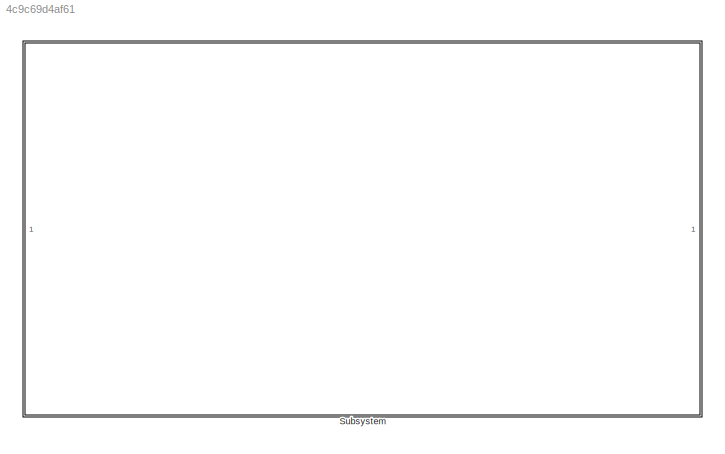
MODEL slx_4c9c69d4af61
KIND model
CONFIG AbsTol = auto
CONFIG EnableMultiTasking = off
CONFIG FixedStep = auto
CONFIG MaxStep = auto
CONFIG MinStep = auto
CONFIG RelTol = 1e-3
CONFIG SampleTimeConstraint = Unconstrained
CONFIG SolverName = VariableStepAuto
CONFIG StartTime = 0.0
CONFIG StopTime = 10.0
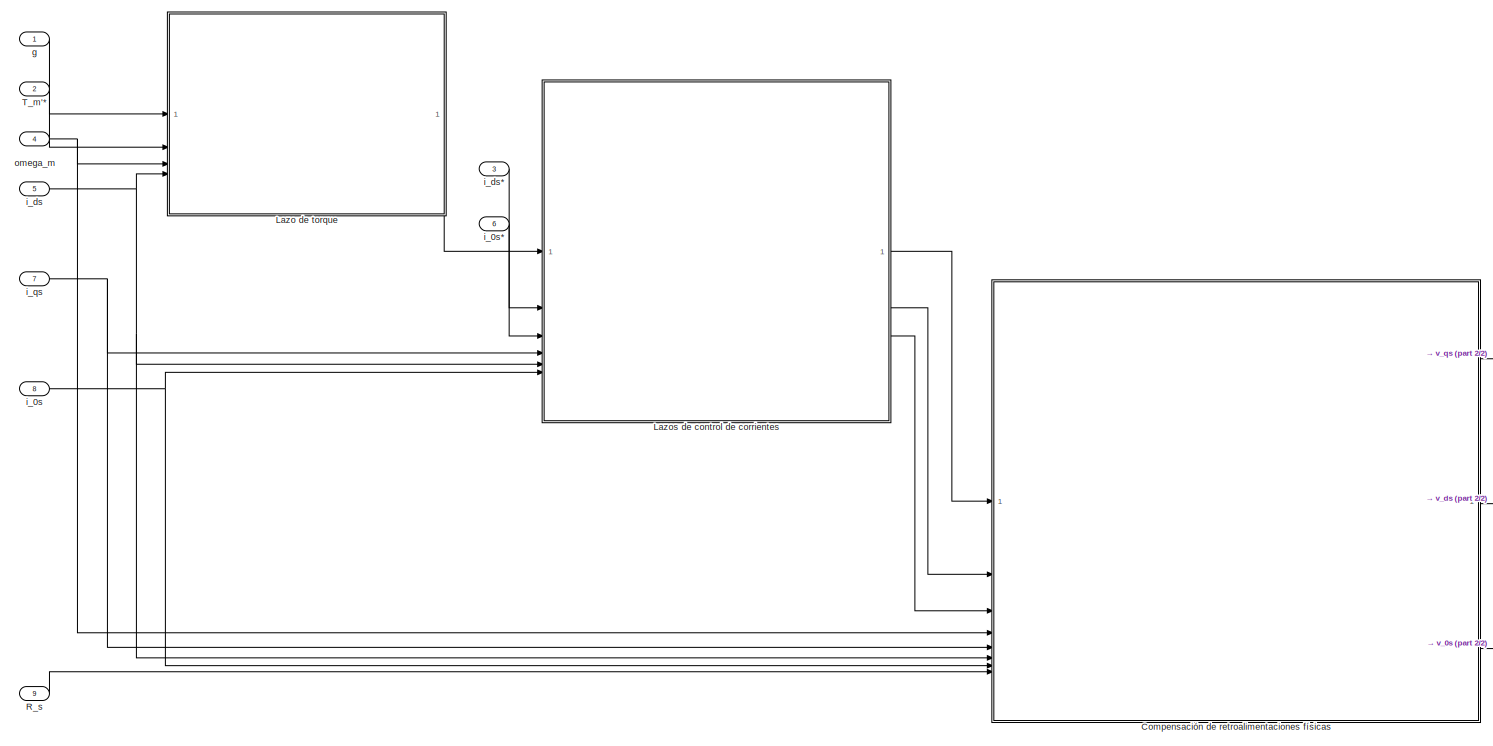
[diagram: Subsystem - part 1/2, most of the canvas]
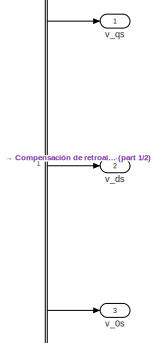
[diagram: Subsystem - part 2/2, bottom right region]
BLOCK [SubSystem] Subsystem
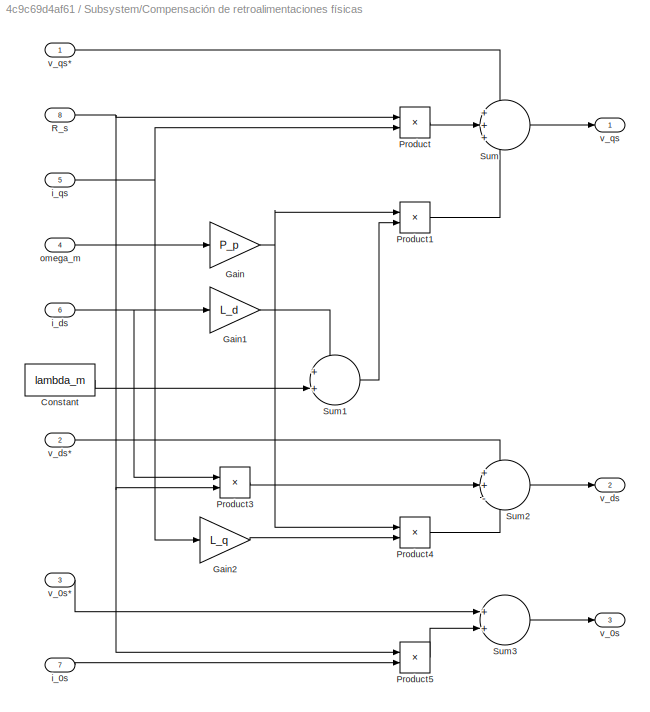
BLOCK [SubSystem] Subsystem/Compensación de retroalimentaciones físicas
  NameLocation = top
BLOCK [Constant] Subsystem/Compensación de retroalimentaciones físicas/Constant
  Value = lambda_m
BLOCK [Gain] Subsystem/Compensación de retroalimentaciones físicas/Gain
  Gain = P_p
BLOCK [Gain] Subsystem/Compensación de retroalimentaciones físicas/Gain1
  Gain = L_d
BLOCK [Gain] Subsystem/Compensación de retroalimentaciones físicas/Gain2
  Gain = L_q
BLOCK [Product] Subsystem/Compensación de retroalimentaciones físicas/Product
BLOCK [Product] Subsystem/Compensación de retroalimentaciones físicas/Product1
BLOCK [Product] Subsystem/Compensación de retroalimentaciones físicas/Product3
BLOCK [Product] Subsystem/Compensación de retroalimentaciones físicas/Product4
BLOCK [Product] Subsystem/Compensación de retroalimentaciones físicas/Product5
BLOCK [Inport] Subsystem/Compensación de retroalimentaciones físicas/R_s
  Port = 8
BLOCK [Sum] Subsystem/Compensación de retroalimentaciones físicas/Sum
  Inputs = +++
BLOCK [Sum] Subsystem/Compensación de retroalimentaciones físicas/Sum1
  Inputs = ++|
BLOCK [Sum] Subsystem/Compensación de retroalimentaciones físicas/Sum2
  Inputs = ++-
BLOCK [Sum] Subsystem/Compensación de retroalimentaciones físicas/Sum3
BLOCK [Inport] Subsystem/Compensación de retroalimentaciones físicas/i_0s
  Port = 7
BLOCK [Inport] Subsystem/Compensación de retroalimentaciones físicas/i_ds
  Port = 6
BLOCK [Inport] Subsystem/Compensación de retroalimentaciones físicas/i_qs
  Port = 5
BLOCK [Inport] Subsystem/Compensación de retroalimentaciones físicas/omega_m
  Port = 4
BLOCK [Outport] Subsystem/Compensación de retroalimentaciones físicas/v_0s
  Port = 3
BLOCK [Inport] Subsystem/Compensación de retroalimentaciones físicas/v_0s*
  Port = 3
BLOCK [Outport] Subsystem/Compensación de retroalimentaciones físicas/v_ds
  Port = 2
BLOCK [Inport] Subsystem/Compensación de retroalimentaciones físicas/v_ds*
  Port = 2
BLOCK [Outport] Subsystem/Compensación de retroalimentaciones físicas/v_qs
BLOCK [Inport] Subsystem/Compensación de retroalimentaciones físicas/v_qs*
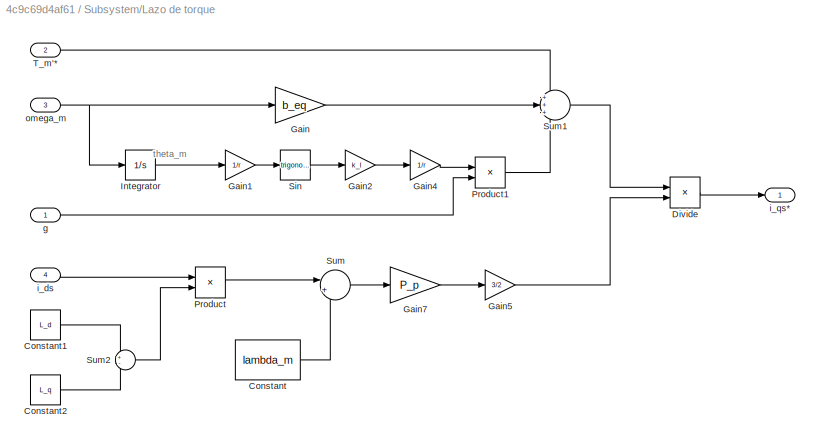
BLOCK [SubSystem] Subsystem/Lazo de torque
  NameLocation = top
BLOCK [Constant] Subsystem/Lazo de torque/Constant
  Value = lambda_m
BLOCK [Constant] Subsystem/Lazo de torque/Constant1
  Value = L_d
BLOCK [Constant] Subsystem/Lazo de torque/Constant2
  Value = L_q
BLOCK [Product] Subsystem/Lazo de torque/Divide
  Inputs = */
BLOCK [Gain] Subsystem/Lazo de torque/Gain
  Gain = b_eq
BLOCK [Gain] Subsystem/Lazo de torque/Gain1
  Gain = 1/r
BLOCK [Gain] Subsystem/Lazo de torque/Gain2
  Gain = k_l
BLOCK [Gain] Subsystem/Lazo de torque/Gain4
  Gain = 1/r
BLOCK [Gain] Subsystem/Lazo de torque/Gain5
  Gain = 3/2
BLOCK [Gain] Subsystem/Lazo de torque/Gain7
  Gain = P_p
BLOCK [Integrator] Subsystem/Lazo de torque/Integrator
BLOCK [Product] Subsystem/Lazo de torque/Product
BLOCK [Product] Subsystem/Lazo de torque/Product1
BLOCK [Trigonometry] Subsystem/Lazo de torque/Sin
BLOCK [Sum] Subsystem/Lazo de torque/Sum
  Inputs = |++
BLOCK [Sum] Subsystem/Lazo de torque/Sum1
  Inputs = +++
BLOCK [Sum] Subsystem/Lazo de torque/Sum2
  Inputs = +-
BLOCK [Inport] Subsystem/Lazo de torque/T_m'*
  Port = 2
BLOCK [Inport] Subsystem/Lazo de torque/g
BLOCK [Inport] Subsystem/Lazo de torque/i_ds
  Port = 4
BLOCK [Outport] Subsystem/Lazo de torque/i_qs*
BLOCK [Inport] Subsystem/Lazo de torque/omega_m
  Port = 3
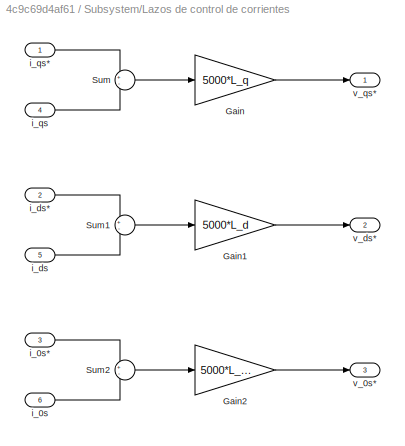
BLOCK [SubSystem] Subsystem/Lazos de control de corrientes
  NameLocation = top
BLOCK [Gain] Subsystem/Lazos de control de corrientes/Gain
  Gain = 5000*L_q
BLOCK [Gain] Subsystem/Lazos de control de corrientes/Gain1
  Gain = 5000*L_d
BLOCK [Gain] Subsystem/Lazos de control de corrientes/Gain2
  Gain = 5000*L_ls
BLOCK [Sum] Subsystem/Lazos de control de corrientes/Sum
  Inputs = +-
BLOCK [Sum] Subsystem/Lazos de control de corrientes/Sum1
  Inputs = +-
BLOCK [Sum] Subsystem/Lazos de control de corrientes/Sum2
  Inputs = +-
BLOCK [Inport] Subsystem/Lazos de control de corrientes/i_0s
  Port = 6
BLOCK [Inport] Subsystem/Lazos de control de corrientes/i_0s*
  Port = 3
BLOCK [Inport] Subsystem/Lazos de control de corrientes/i_ds
  Port = 5
BLOCK [Inport] Subsystem/Lazos de control de corrientes/i_ds*
  Port = 2
BLOCK [Inport] Subsystem/Lazos de control de corrientes/i_qs
  Port = 4
BLOCK [Inport] Subsystem/Lazos de control de corrientes/i_qs*
BLOCK [Outport] Subsystem/Lazos de control de corrientes/v_0s*
  Port = 3
BLOCK [Outport] Subsystem/Lazos de control de corrientes/v_ds*
  Port = 2
BLOCK [Outport] Subsystem/Lazos de control de corrientes/v_qs*
BLOCK [Inport] Subsystem/R_s
  Port = 9
BLOCK [Inport] Subsystem/T_m'*
  Port = 2
BLOCK [Inport] Subsystem/g
BLOCK [Inport] Subsystem/i_0s
  Port = 8
BLOCK [Inport] Subsystem/i_0s*
  Port = 6
BLOCK [Inport] Subsystem/i_ds
  Port = 5
BLOCK [Inport] Subsystem/i_ds*
  Port = 3
BLOCK [Inport] Subsystem/i_qs
  Port = 7
BLOCK [Inport] Subsystem/omega_m
  Port = 4
BLOCK [Outport] Subsystem/v_0s
  Port = 3
BLOCK [Outport] Subsystem/v_ds
  Port = 2
BLOCK [Outport] Subsystem/v_qs
ANNOTATION Subsystem/Lazo de torque: theta_m
LINE Subsystem/Compensación de retroalimentaciones físicas/Constant:1 -> Subsystem/Compensación de retroalimentaciones físicas/Sum1:2
LINE Subsystem/Compensación de retroalimentaciones físicas/Gain1:1 -> Subsystem/Compensación de retroalimentaciones físicas/Sum1:1
LINE Subsystem/Compensación de retroalimentaciones físicas/Gain2:1 -> Subsystem/Compensación de retroalimentaciones físicas/Product4:2
NET Subsystem/Compensación de retroalimentaciones físicas/Gain:1 -> Subsystem/Compensación de retroalimentaciones físicas/Product1:1, Subsystem/Compensación de retroalimentaciones físicas/Product4:1
LINE Subsystem/Compensación de retroalimentaciones físicas/Product1:1 -> Subsystem/Compensación de retroalimentaciones físicas/Sum:3
LINE Subsystem/Compensación de retroalimentaciones físicas/Product3:1 -> Subsystem/Compensación de retroalimentaciones físicas/Sum2:2
LINE Subsystem/Compensación de retroalimentaciones físicas/Product4:1 -> Subsystem/Compensación de retroalimentaciones físicas/Sum2:3
LINE Subsystem/Compensación de retroalimentaciones físicas/Product5:1 -> Subsystem/Compensación de retroalimentaciones físicas/Sum3:2
LINE Subsystem/Compensación de retroalimentaciones físicas/Product:1 -> Subsystem/Compensación de retroalimentaciones físicas/Sum:2
NET Subsystem/Compensación de retroalimentaciones físicas/R_s:1 -> Subsystem/Compensación de retroalimentaciones físicas/Product3:2, Subsystem/Compensación de retroalimentaciones físicas/Product5:1, Subsystem/Compensación de retroalimentaciones físicas/Product:1
LINE Subsystem/Compensación de retroalimentaciones físicas/Sum1:1 -> Subsystem/Compensación de retroalimentaciones físicas/Product1:2
LINE Subsystem/Compensación de retroalimentaciones físicas/Sum2:1 -> Subsystem/Compensación de retroalimentaciones físicas/v_ds:1
LINE Subsystem/Compensación de retroalimentaciones físicas/Sum3:1 -> Subsystem/Compensación de retroalimentaciones físicas/v_0s:1
LINE Subsystem/Compensación de retroalimentaciones físicas/Sum:1 -> Subsystem/Compensación de retroalimentaciones físicas/v_qs:1
LINE Subsystem/Compensación de retroalimentaciones físicas/i_0s:1 -> Subsystem/Compensación de retroalimentaciones físicas/Product5:2
NET Subsystem/Compensación de retroalimentaciones físicas/i_ds:1 -> Subsystem/Compensación de retroalimentaciones físicas/Gain1:1, Subsystem/Compensación de retroalimentaciones físicas/Product3:1
NET Subsystem/Compensación de retroalimentaciones físicas/i_qs:1 -> Subsystem/Compensación de retroalimentaciones físicas/Gain2:1, Subsystem/Compensación de retroalimentaciones físicas/Product:2
LINE Subsystem/Compensación de retroalimentaciones físicas/omega_m:1 -> Subsystem/Compensación de retroalimentaciones físicas/Gain:1
LINE Subsystem/Compensación de retroalimentaciones físicas/v_0s*:1 -> Subsystem/Compensación de retroalimentaciones físicas/Sum3:1
LINE Subsystem/Compensación de retroalimentaciones físicas/v_ds*:1 -> Subsystem/Compensación de retroalimentaciones físicas/Sum2:1
LINE Subsystem/Compensación de retroalimentaciones físicas/v_qs*:1 -> Subsystem/Compensación de retroalimentaciones físicas/Sum:1
LINE Subsystem/Compensación de retroalimentaciones físicas:1 -> Subsystem/v_qs:1
LINE Subsystem/Compensación de retroalimentaciones físicas:2 -> Subsystem/v_ds:1
LINE Subsystem/Compensación de retroalimentaciones físicas:3 -> Subsystem/v_0s:1
LINE Subsystem/Lazo de torque/Constant1:1 -> Subsystem/Lazo de torque/Sum2:1
LINE Subsystem/Lazo de torque/Constant2:1 -> Subsystem/Lazo de torque/Sum2:2
LINE Subsystem/Lazo de torque/Constant:1 -> Subsystem/Lazo de torque/Sum:2
LINE Subsystem/Lazo de torque/Divide:1 -> Subsystem/Lazo de torque/i_qs*:1
LINE Subsystem/Lazo de torque/Gain1:1 -> Subsystem/Lazo de torque/Sin:1
LINE Subsystem/Lazo de torque/Gain2:1 -> Subsystem/Lazo de torque/Gain4:1
LINE Subsystem/Lazo de torque/Gain4:1 -> Subsystem/Lazo de torque/Product1:1
LINE Subsystem/Lazo de torque/Gain5:1 -> Subsystem/Lazo de torque/Divide:2
LINE Subsystem/Lazo de torque/Gain7:1 -> Subsystem/Lazo de torque/Gain5:1
LINE Subsystem/Lazo de torque/Gain:1 -> Subsystem/Lazo de torque/Sum1:2
LINE Subsystem/Lazo de torque/Integrator:1 -> Subsystem/Lazo de torque/Gain1:1
LINE Subsystem/Lazo de torque/Product1:1 -> Subsystem/Lazo de torque/Sum1:3
LINE Subsystem/Lazo de torque/Product:1 -> Subsystem/Lazo de torque/Sum:1
LINE Subsystem/Lazo de torque/Sin:1 -> Subsystem/Lazo de torque/Gain2:1
LINE Subsystem/Lazo de torque/Sum1:1 -> Subsystem/Lazo de torque/Divide:1
LINE Subsystem/Lazo de torque/Sum2:1 -> Subsystem/Lazo de torque/Product:2
LINE Subsystem/Lazo de torque/Sum:1 -> Subsystem/Lazo de torque/Gain7:1
LINE Subsystem/Lazo de torque/T_m'*:1 -> Subsystem/Lazo de torque/Sum1:1
LINE Subsystem/Lazo de torque/g:1 -> Subsystem/Lazo de torque/Product1:2
LINE Subsystem/Lazo de torque/i_ds:1 -> Subsystem/Lazo de torque/Product:1
NET Subsystem/Lazo de torque/omega_m:1 -> Subsystem/Lazo de torque/Gain:1, Subsystem/Lazo de torque/Integrator:1
LINE Subsystem/Lazo de torque:1 -> Subsystem/Lazos de control de corrientes:1
LINE Subsystem/Lazos de control de corrientes/Gain1:1 -> Subsystem/Lazos de control de corrientes/v_ds*:1
LINE Subsystem/Lazos de control de corrientes/Gain2:1 -> Subsystem/Lazos de control de corrientes/v_0s*:1
LINE Subsystem/Lazos de control de corrientes/Gain:1 -> Subsystem/Lazos de control de corrientes/v_qs*:1
LINE Subsystem/Lazos de control de corrientes/Sum1:1 -> Subsystem/Lazos de control de corrientes/Gain1:1
LINE Subsystem/Lazos de control de corrientes/Sum2:1 -> Subsystem/Lazos de control de corrientes/Gain2:1
LINE Subsystem/Lazos de control de corrientes/Sum:1 -> Subsystem/Lazos de control de corrientes/Gain:1
LINE Subsystem/Lazos de control de corrientes/i_0s*:1 -> Subsystem/Lazos de control de corrientes/Sum2:1
LINE Subsystem/Lazos de control de corrientes/i_0s:1 -> Subsystem/Lazos de control de corrientes/Sum2:2
LINE Subsystem/Lazos de control de corrientes/i_ds*:1 -> Subsystem/Lazos de control de corrientes/Sum1:1
LINE Subsystem/Lazos de control de corrientes/i_ds:1 -> Subsystem/Lazos de control de corrientes/Sum1:2
LINE Subsystem/Lazos de control de corrientes/i_qs*:1 -> Subsystem/Lazos de control de corrientes/Sum:1
LINE Subsystem/Lazos de control de corrientes/i_qs:1 -> Subsystem/Lazos de control de corrientes/Sum:2
LINE Subsystem/Lazos de control de corrientes:1 -> Subsystem/Compensación de retroalimentaciones físicas:1
LINE Subsystem/Lazos de control de corrientes:2 -> Subsystem/Compensación de retroalimentaciones físicas:2
LINE Subsystem/Lazos de control de corrientes:3 -> Subsystem/Compensación de retroalimentaciones físicas:3
LINE Subsystem/R_s:1 -> Subsystem/Compensación de retroalimentaciones físicas:8
LINE Subsystem/T_m'*:1 -> Subsystem/Lazo de torque:2
LINE Subsystem/g:1 -> Subsystem/Lazo de torque:1
LINE Subsystem/i_0s*:1 -> Subsystem/Lazos de control de corrientes:3
NET Subsystem/i_0s:1 -> Subsystem/Compensación de retroalimentaciones físicas:7, Subsystem/Lazos de control de corrientes:6
LINE Subsystem/i_ds*:1 -> Subsystem/Lazos de control de corrientes:2
NET Subsystem/i_ds:1 -> Subsystem/Compensación de retroalimentaciones físicas:6, Subsystem/Lazo de torque:4, Subsystem/Lazos de control de corrientes:5
NET Subsystem/i_qs:1 -> Subsystem/Compensación de retroalimentaciones físicas:5, Subsystem/Lazos de control de corrientes:4
NET Subsystem/omega_m:1 -> Subsystem/Compensación de retroalimentaciones físicas:4, Subsystem/Lazo de torque:3
note: NET lines group one-source signal fan-out (src -> all destinations, sorted); 1:1 wires keep LINE
